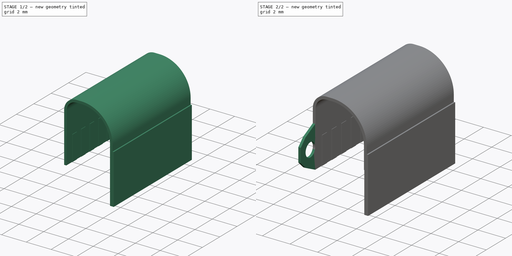
[diagram: build sequence overview — one tinted view per stage of 2, left to right]
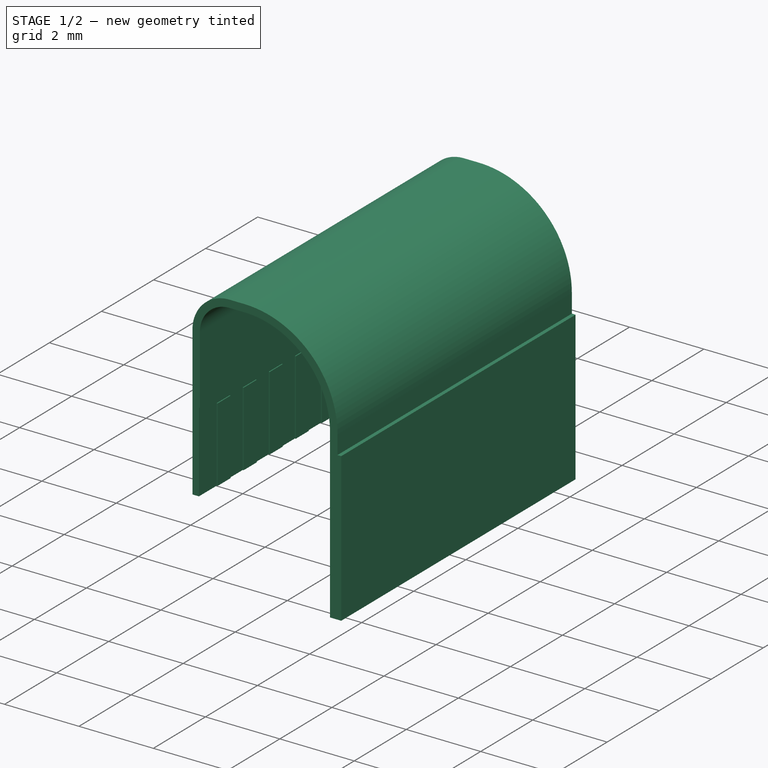
[diagram: stage 1 of 2 — iso view after this stage's code; geometry added in this stage tinted green]
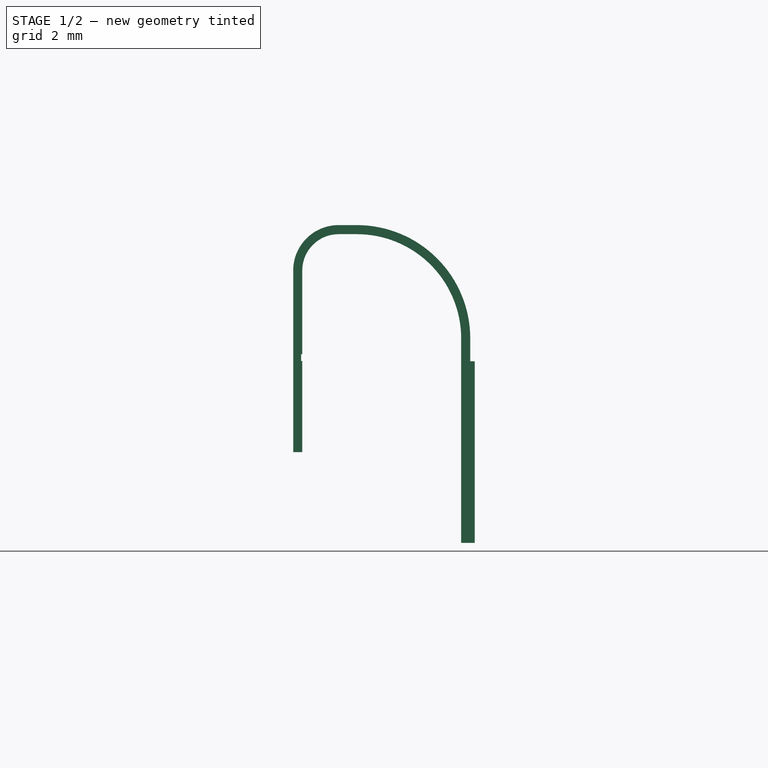
[diagram: stage 1 of 2 — front view after this stage's code; geometry added in this stage tinted green]
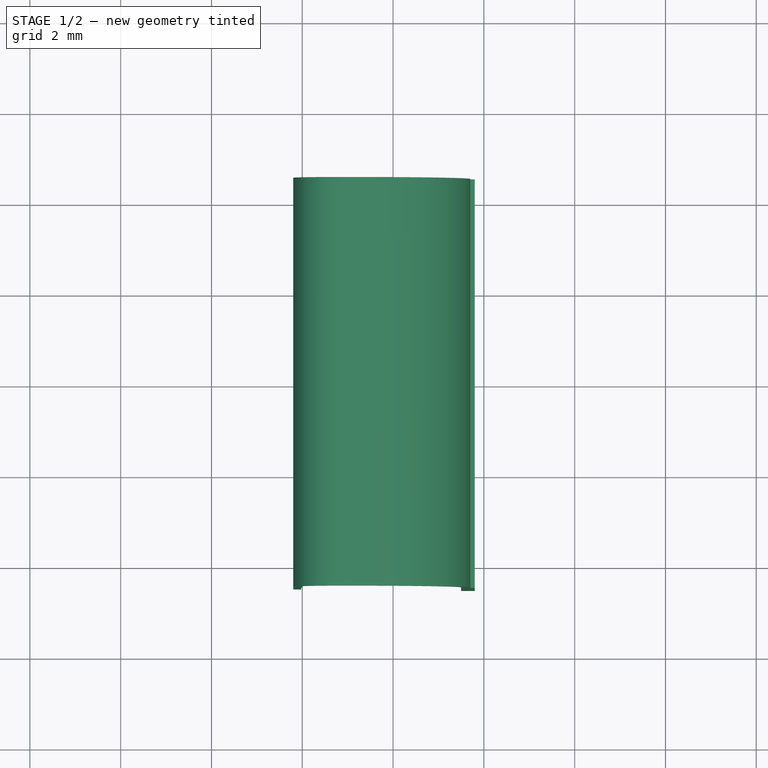
[diagram: stage 1 of 2 — top view after this stage's code; geometry added in this stage tinted green]
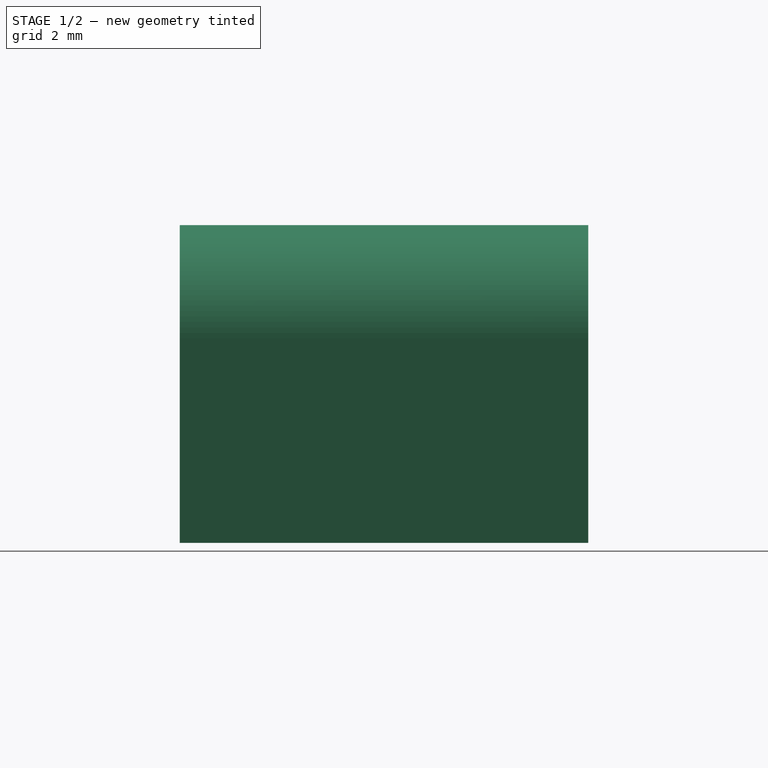
[diagram: stage 1 of 2 — right view after this stage's code; geometry added in this stage tinted green]
FCSTD DOCUMENT  (FreeCAD 0.18R15969 (Git))
Label: InterfaceFFC
License: All rights reserved
LicenseURL: http://en.wikipedia.org/wiki/All_rights_reserved
objects: Sketcher::SketchObject×4, PartDesign::Pad×2, PartDesign::Pocket×2, PartDesign::Body×1
note: 13 computed .brp shape members not serialized (recipe doc carries the construction recipe); baked Part::Feature solids carry a one-line shape summary decoded from their .brp

FEATURE [Sketcher::SketchObject] Sketch
  MapMode = 5
  Placement = pos=(0,0,0) rot=(1,0,0;1.5708rad)
  Support = -> [XZ_Plane]
  sketch-geometry (23):
    g0: LineSegment StartX=0 StartY=0 StartZ=0 EndX=0 EndY=4 EndZ=0
    g1: LineSegment StartX=0 StartY=0 StartZ=0 EndX=-0.2 EndY=0 EndZ=0
    g2: LineSegment StartX=-0.2 StartY=0 StartZ=0 EndX=-0.2 EndY=4 EndZ=0
    g3: LineSegment [constr] StartX=0 StartY=4 StartZ=0 EndX=0.8 EndY=4 EndZ=0
    g4: LineSegment [constr] StartX=0.8 StartY=4 StartZ=0 EndX=0.8 EndY=4.8 EndZ=0
    g5: LineSegment [constr] StartX=1.20187 StartY=2.50187 StartZ=0 EndX=1.20187 EndY=4.8 EndZ=0
    g6: LineSegment [constr] StartX=1.20187 StartY=2.50187 StartZ=0 EndX=3.5 EndY=2.50187 EndZ=0
    g7: ArcOfCircle CenterX=0.8 CenterY=4 CenterZ=0 NormalX=0 NormalY=0 NormalZ=1 AngleXU=0 Radius=0.8 StartAngle=1.5708 EndAngle=3.14159
    g8: ArcOfCircle CenterX=0.8 CenterY=4 CenterZ=0 NormalX=0 NormalY=0 NormalZ=1 AngleXU=0 Radius=1 StartAngle=1.5708 EndAngle=3.14159
    g9: LineSegment StartX=0.8 StartY=4.8 StartZ=0 EndX=1.20187 EndY=4.8 EndZ=0
    g10: ArcOfCircle CenterX=1.20187 CenterY=2.50187 CenterZ=0 NormalX=0 NormalY=0 NormalZ=1 AngleXU=0 Radius=2.29813 StartAngle=0 EndAngle=1.5708
    g11: LineSegment StartX=0.8 StartY=5 StartZ=0 EndX=1.20187 EndY=5 EndZ=0
    g12: LineSegment [constr] StartX=-0.2 StartY=4 StartZ=0 EndX=0 EndY=4 EndZ=0
    g13: LineSegment [constr] StartX=0.8 StartY=4.8 StartZ=0 EndX=0.8 EndY=5 EndZ=0
    g14: LineSegment [constr] StartX=1.20187 StartY=4.8 StartZ=0 EndX=1.20187 EndY=5 EndZ=0
    g15: LineSegment [constr] StartX=3.5 StartY=2.50187 StartZ=0 EndX=3.7 EndY=2.50187 EndZ=0
    g16: ArcOfCircle CenterX=1.20187 CenterY=2.50187 CenterZ=0 NormalX=0 NormalY=0 NormalZ=1 AngleXU=0 Radius=2.49813 StartAngle=0 EndAngle=1.5708
    g17: LineSegment StartX=3.5 StartY=2.50187 StartZ=0 EndX=3.5 EndY=-2 EndZ=0
    g18: LineSegment StartX=3.7 StartY=2.50187 StartZ=0 EndX=3.7 EndY=2 EndZ=0
    g19: LineSegment [constr] StartX=0 StartY=0 StartZ=0 EndX=1 EndY=0 EndZ=0
    g20: LineSegment StartX=3.7 StartY=2 StartZ=0 EndX=3.8 EndY=2 EndZ=0
    g21: LineSegment StartX=3.8 StartY=2 StartZ=0 EndX=3.8 EndY=-2 EndZ=0
    g22: LineSegment StartX=3.5 StartY=-2 StartZ=0 EndX=3.8 EndY=-2 EndZ=0
  constraints (61):
    c: Coincident(g0,g-1)
    c: Vertical(g0)
    c: Coincident(g1,g0)
    c: PointOnObject(g1,g-1)
    c: Coincident(g2,g1)
    c: Vertical(g2)
    c: DistanceX(g1,g1) = 0.2
    c: Coincident(g3,g0)
    c: Horizontal(g3)
    c: Coincident(g4,g3)
    c: Vertical(g4)
    c: Vertical(g5)
    c: Coincident(g6,g5)
    c: Horizontal(g6)
    c: Coincident(g7,g3)
    c: Coincident(g7,g0)
    c: Coincident(g7,g4)
    c: Coincident(g8,g7)
    c: Coincident(g8,g2)
    c: Coincident(g9,g7)
    c: Horizontal(g9)
    c: Coincident(g9,g5)
    c: Coincident(g10,g5)
    c: Coincident(g10,g9)
    c: Coincident(g10,g6)
    c: Coincident(g11,g8)
    c: Horizontal(g11)
    c: Coincident(g12,g2)
    c: Coincident(g12,g0)
    c: Coincident(g13,g7)
    c: Coincident(g13,g8)
    c: Coincident(g14,g9)
    c: Coincident(g14,g11)
    c: Coincident(g15,g10)
    c: Horizontal(g15)
    c: Vertical(g14)
    c: Vertical(g13)
    c: Horizontal(g12)
    c: DistanceY(g7,g8) = 1
    c: Coincident(g16,g10)
    c: Coincident(g16,g11)
    c: Coincident(g16,g15)
    c: Coincident(g17,g10)
    c: Vertical(g17)
    c: Coincident(g18,g16)
    c: Vertical(g18)
    c: DistanceY(g2,g2) = 4
    c: Coincident(g19,g0)
    c: PointOnObject(g19,g-1)
    c: DistanceX(g19,g19) = 1
    c: DistanceX(g19,g17) = 2.5
    c: DistanceY(g17,g11) = 7
    c: Coincident(g20,g18)
    c: Coincident(g21,g20)
    c: Vertical(g21)
    c: Coincident(g22,g17)
    c: Coincident(g22,g21)
    c: Horizontal(g22)
    c: DistanceX(g22,g22) = 0.3
    c: DistanceY(g21,g21) = 4
    c: Horizontal(g20)
FEATURE [PartDesign::Pad] Pad
  Length = 9
  Length2 = 100
  Midplane = true
  Placement = pos=(0,0,0) rot=(1,0,0;1.5708rad)
  Profile = -> Sketch
  Refine = true
  Type = 0
FEATURE [Sketcher::SketchObject] Sketch001
  ExternalGeometry = -> [Pad]
  MapMode = 5
  Placement = pos=(0,0,0) rot=(0.707107,0,0.707107;3.14159rad)
  Support = -> [Pad]
  sketch-geometry (36):
    g0: LineSegment StartX=0 StartY=3.8181 StartZ=0 EndX=2.00579 EndY=3.8181 EndZ=0
    g1: LineSegment StartX=2.00579 StartY=3.8181 StartZ=0 EndX=2.00579 EndY=3.3181 EndZ=0
    g2: LineSegment StartX=2.00579 StartY=3.3181 StartZ=0 EndX=0 EndY=3.3181 EndZ=0
    g3: LineSegment StartX=0 StartY=2.8181 StartZ=0 EndX=2.00579 EndY=2.8181 EndZ=0
    g4: LineSegment StartX=2.00579 StartY=2.8181 StartZ=0 EndX=2.00579 EndY=2.3181 EndZ=0
    g5: LineSegment StartX=2.00579 StartY=2.3181 StartZ=0 EndX=0 EndY=2.3181 EndZ=0
    g6: LineSegment StartX=0 StartY=1.8181 StartZ=0 EndX=2.00579 EndY=1.8181 EndZ=0
    g7: LineSegment StartX=2.00579 StartY=1.8181 StartZ=0 EndX=2.00579 EndY=1.3181 EndZ=0
    g8: LineSegment StartX=2.00579 StartY=1.3181 StartZ=0 EndX=0 EndY=1.3181 EndZ=0
    g9: LineSegment StartX=0 StartY=0.818103 StartZ=0 EndX=2.00579 EndY=0.818103 EndZ=0
    g10: LineSegment StartX=2.00579 StartY=0.818103 StartZ=0 EndX=2.00579 EndY=0.318103 EndZ=0
    g11: LineSegment StartX=2.00579 StartY=0.318103 StartZ=0 EndX=0 EndY=0.318103 EndZ=0
    g12: LineSegment StartX=0 StartY=-0.181897 StartZ=0 EndX=2.00579 EndY=-0.181897 EndZ=0
    g13: LineSegment StartX=2.00579 StartY=-0.181897 StartZ=0 EndX=2.00579 EndY=-0.681897 EndZ=0
    g14: LineSegment StartX=2.00579 StartY=-0.681897 StartZ=0 EndX=0 EndY=-0.681897 EndZ=0
    g15: LineSegment StartX=0 StartY=-1.1819 StartZ=0 EndX=2.00579 EndY=-1.1819 EndZ=0
    g16: LineSegment StartX=2.00579 StartY=-1.1819 StartZ=0 EndX=2.00579 EndY=-1.6819 EndZ=0
    g17: LineSegment StartX=2.00579 StartY=-1.6819 StartZ=0 EndX=0 EndY=-1.6819 EndZ=0
    g18: LineSegment StartX=0 StartY=-2.1819 StartZ=0 EndX=2.00579 EndY=-2.1819 EndZ=0
    g19: LineSegment StartX=2.00579 StartY=-2.1819 StartZ=0 EndX=2.00579 EndY=-2.6819 EndZ=0
    g20: LineSegment StartX=2.00579 StartY=-2.6819 StartZ=0 EndX=0 EndY=-2.6819 EndZ=0
    g21: LineSegment StartX=0 StartY=-3.1819 StartZ=0 EndX=2.00579 EndY=-3.1819 EndZ=0
    g22: LineSegment StartX=2.00579 StartY=-3.1819 StartZ=0 EndX=2.00579 EndY=-3.6819 EndZ=0
    g23: LineSegment StartX=2.00579 StartY=-3.6819 StartZ=0 EndX=0 EndY=-3.6819 EndZ=0
    g24: LineSegment StartX=0 StartY=3.3181 StartZ=0 EndX=0 EndY=2.8181 EndZ=0
    g25: LineSegment StartX=0 StartY=2.3181 StartZ=0 EndX=0 EndY=1.8181 EndZ=0
    g26: LineSegment StartX=0 StartY=1.3181 StartZ=0 EndX=0 EndY=0.818103 EndZ=0
    g27: LineSegment StartX=0 StartY=0.318103 StartZ=0 EndX=0 EndY=-0.181897 EndZ=0
    g28: LineSegment StartX=0 StartY=-0.681897 StartZ=0 EndX=0 EndY=-1.1819 EndZ=0
    g29: LineSegment StartX=0 StartY=-1.6819 StartZ=0 EndX=0 EndY=-2.1819 EndZ=0
    g30: LineSegment StartX=0 StartY=-2.6819 StartZ=0 EndX=0 EndY=-3.1819 EndZ=0
    g31: LineSegment StartX=0 StartY=3.8181 StartZ=0 EndX=2.7e-15 EndY=4.5 EndZ=0
    g32: LineSegment StartX=-2.7e-15 StartY=-4.5 StartZ=0 EndX=0 EndY=-3.6819 EndZ=0
    g33: LineSegment StartX=-2.7e-15 StartY=-4.5 StartZ=0 EndX=2.15616 EndY=-4.5 EndZ=0
    g34: LineSegment StartX=2.15616 StartY=-4.5 StartZ=0 EndX=2.15616 EndY=4.5 EndZ=0
    g35: LineSegment StartX=2.15616 StartY=4.5 StartZ=0 EndX=2.7e-15 EndY=4.5 EndZ=0
  constraints (103):
    c: PointOnObject(g0,g-2)
    c: Horizontal(g0)
    c: Coincident(g1,g0)
    c: Vertical(g1)
    c: Coincident(g2,g1)
    c: PointOnObject(g2,g-2)
    c: Horizontal(g2)
    c: PointOnObject(g3,g-2)
    c: Horizontal(g3)
    c: Coincident(g4,g3)
    c: Vertical(g4)
    c: Coincident(g5,g4)
    c: PointOnObject(g5,g-2)
    c: Horizontal(g5)
    c: PointOnObject(g6,g-2)
    c: Horizontal(g6)
    c: Coincident(g7,g6)
    c: Vertical(g7)
    c: Coincident(g8,g7)
    c: PointOnObject(g8,g-2)
    c: Horizontal(g8)
    c: PointOnObject(g9,g-2)
    c: Horizontal(g9)
    c: Coincident(g10,g9)
    c: Vertical(g10)
    c: Coincident(g11,g10)
    c: PointOnObject(g11,g-2)
    c: Horizontal(g11)
    c: PointOnObject(g12,g-2)
    c: Horizontal(g12)
    c: Coincident(g13,g12)
    c: Vertical(g13)
    c: Coincident(g14,g13)
    c: PointOnObject(g14,g-2)
    c: Horizontal(g14)
    c: PointOnObject(g15,g-2)
    c: Horizontal(g15)
    c: Coincident(g16,g15)
    c: Vertical(g16)
    c: Coincident(g17,g16)
    c: PointOnObject(g17,g-2)
    c: Horizontal(g17)
    c: PointOnObject(g18,g-2)
    c: Horizontal(g18)
    c: Coincident(g19,g18)
    c: Vertical(g19)
    c: Coincident(g20,g19)
    c: PointOnObject(g20,g-2)
    c: Horizontal(g20)
    c: PointOnObject(g21,g-2)
    c: Horizontal(g21)
    c: Coincident(g22,g21)
    c: Vertical(g22)
    c: Coincident(g23,g22)
    c: Horizontal(g23)
    c: PointOnObject(g23,g-2)
    c: Equal(g23,g20)
    c: Equal(g20,g17)
    c: Equal(g17,g14)
    c: Equal(g14,g11)
    c: Equal(g11,g8)
    c: Equal(g8,g5)
    c: Equal(g5,g2)
    c: Equal(g22,g19)
    c: Equal(g19,g16)
    c: Equal(g16,g13)
    c: Equal(g13,g10)
    c: Equal(g10,g7)
    c: Equal(g7,g4)
    c: Equal(g4,g1)
    c: Coincident(g24,g2)
    c: Coincident(g24,g3)
    c: Coincident(g25,g5)
    c: Coincident(g25,g6)
    c: Coincident(g26,g8)
    c: Coincident(g26,g9)
    c: Coincident(g27,g11)
    c: Coincident(g27,g12)
    c: Coincident(g28,g14)
    c: Coincident(g28,g15)
    c: Coincident(g29,g17)
    c: Coincident(g29,g18)
    c: Coincident(g30,g20)
    c: Coincident(g30,g21)
    c: Equal(g24,g25)
    c: Equal(g25,g26)
    c: Equal(g26,g27)
    c: Equal(g27,g28)
    c: Equal(g28,g29)
    c: Equal(g29,g30)
    c: DistanceY(g1,g1) = 0.5
    c: DistanceY(g24,g24) = 0.5
    c: Coincident(g31,g0)
    c: Coincident(g31,g-3)
    c: Coincident(g32,g-4)
    c: Coincident(g32,g23)
    c: Coincident(g33,g32)
    c: PointOnObject(g33,g-4)
    c: Coincident(g34,g33)
    c: PointOnObject(g34,g-3)
    c: Vertical(g34)
    c: Coincident(g35,g34)
    c: Coincident(g35,g31)
FEATURE [PartDesign::Pocket] Pocket
  BaseFeature = -> Pad
  Length = 0.025
  Length2 = 100
  Placement = pos=(0,0,0) rot=(1,0,0;1.5708rad)
  Profile = -> Sketch001
  Refine = true
  Type = 0
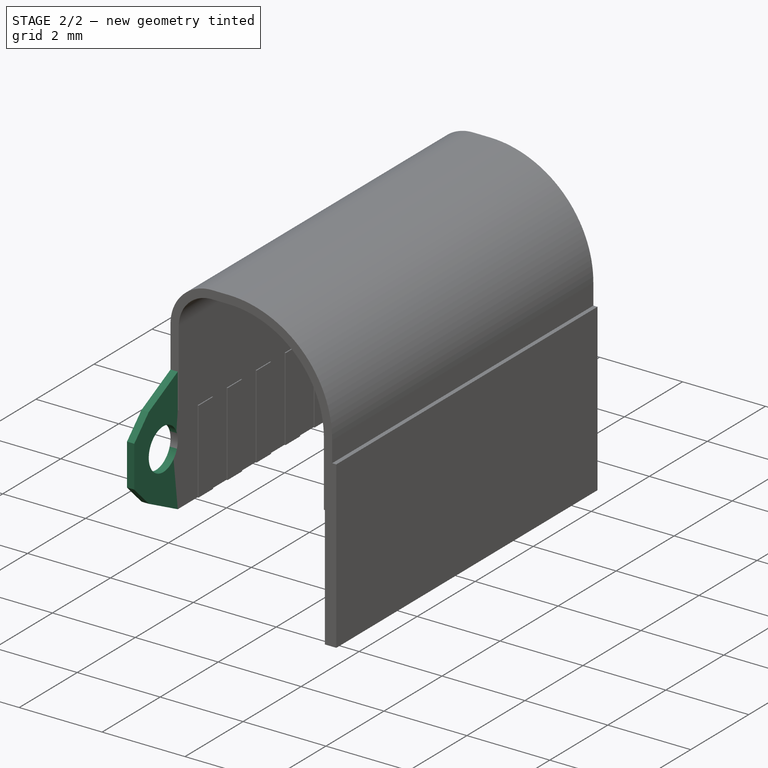
[diagram: stage 2 of 2 — iso view after this stage's code; geometry added in this stage tinted green]
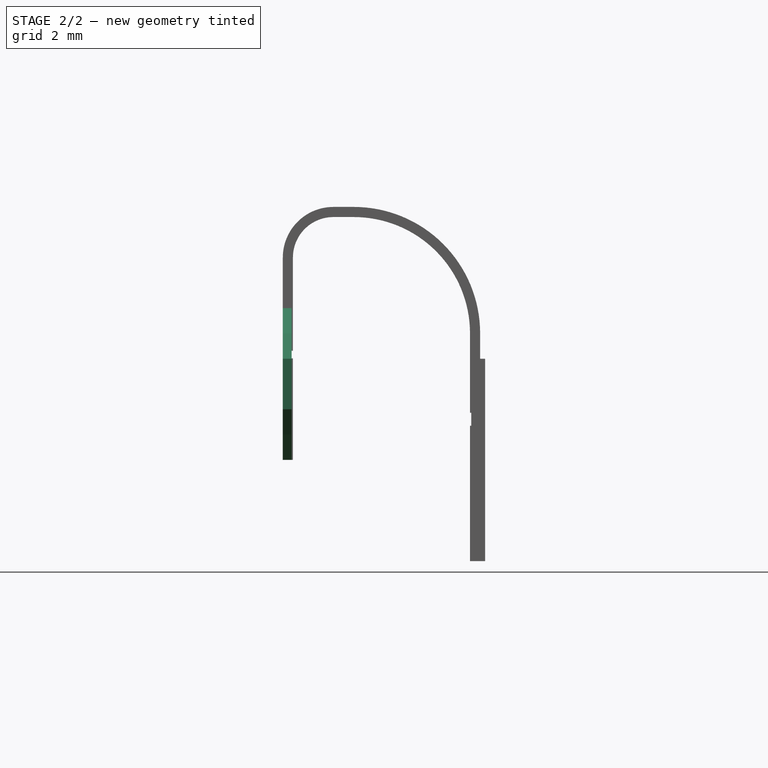
[diagram: stage 2 of 2 — front view after this stage's code; geometry added in this stage tinted green]
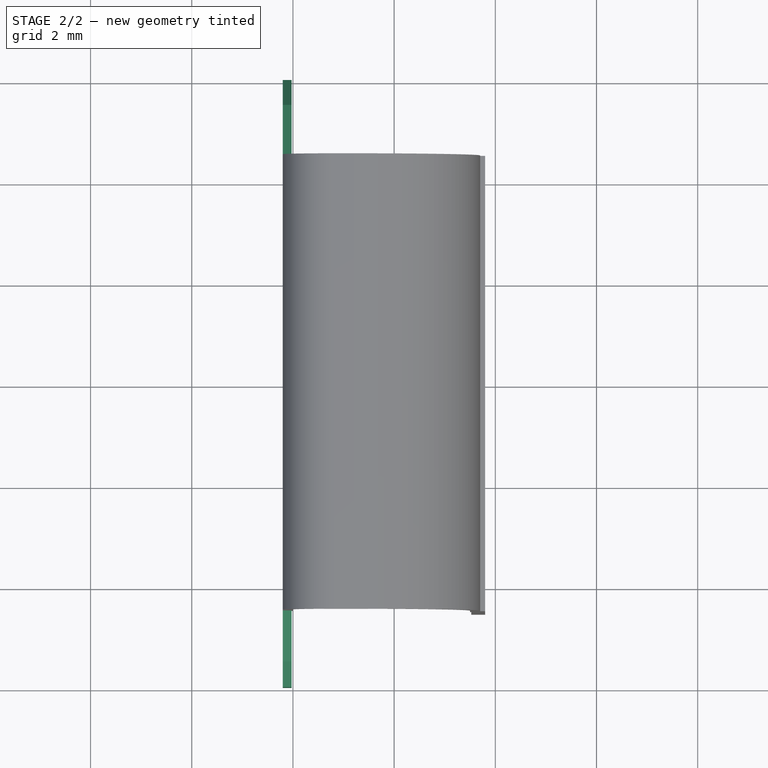
[diagram: stage 2 of 2 — top view after this stage's code; geometry added in this stage tinted green]
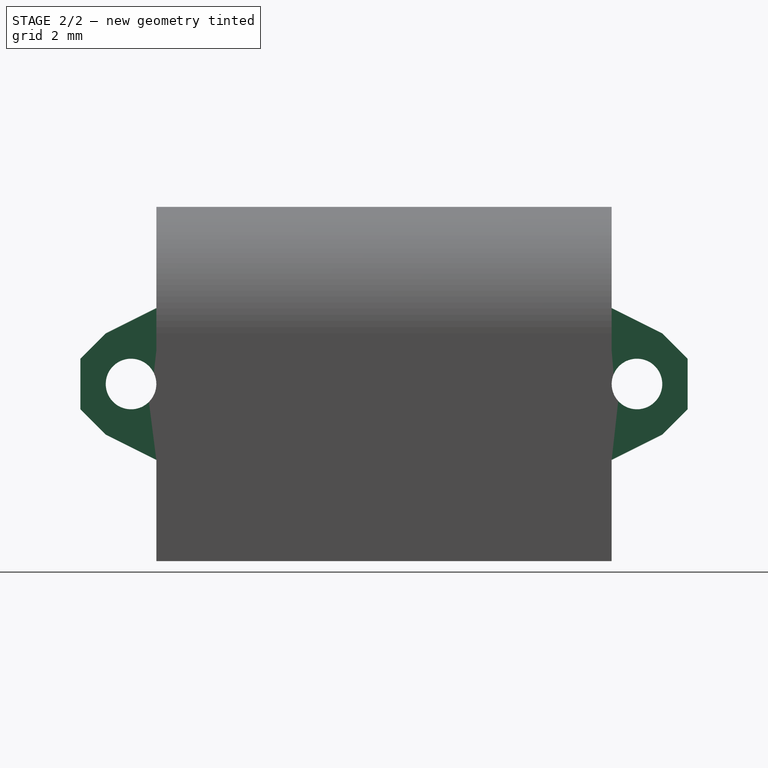
[diagram: stage 2 of 2 — right view after this stage's code; geometry added in this stage tinted green]
FEATURE [Sketcher::SketchObject] Sketch002
  ExternalGeometry = -> [Pocket]
  MapMode = 5
  Placement = pos=(3.5,0,0) rot=(0.707107,0,-0.707107;3.14159rad)
  Support = -> [Pocket]
  sketch-geometry (36):
    g0: LineSegment StartX=2 StartY=3.75 StartZ=0 EndX=-0.673578 EndY=3.75 EndZ=0
    g1: LineSegment StartX=-0.673578 StartY=3.75 StartZ=0 EndX=-0.673578 EndY=3.25 EndZ=0
    g2: LineSegment StartX=-0.673578 StartY=3.25 StartZ=0 EndX=2 EndY=3.25 EndZ=0
    g3: LineSegment StartX=2 StartY=3.25 StartZ=0 EndX=1.99849 EndY=2.75 EndZ=0
    g4: LineSegment StartX=1.99849 StartY=2.75 StartZ=0 EndX=-0.675084 EndY=2.75 EndZ=0
    g5: LineSegment StartX=-0.675084 StartY=2.75 StartZ=0 EndX=-0.675084 EndY=2.25 EndZ=0
    g6: LineSegment StartX=-0.675084 StartY=2.25 StartZ=0 EndX=2 EndY=2.25 EndZ=0
    g7: LineSegment StartX=2 StartY=2.25 StartZ=0 EndX=2 EndY=1.75 EndZ=0
    g8: LineSegment StartX=2 StartY=1.75 StartZ=0 EndX=-0.673578 EndY=1.75 EndZ=0
    g9: LineSegment StartX=-0.673578 StartY=1.75 StartZ=0 EndX=-0.673578 EndY=1.25 EndZ=0
    g10: LineSegment StartX=-0.673578 StartY=1.25 StartZ=0 EndX=2 EndY=1.25 EndZ=0
    g11: LineSegment StartX=2 StartY=1.25 StartZ=0 EndX=2 EndY=0.750001 EndZ=0
    g12: LineSegment StartX=2 StartY=0.750001 StartZ=0 EndX=-0.673578 EndY=0.750001 EndZ=0
    g13: LineSegment StartX=-0.673578 StartY=0.750001 StartZ=0 EndX=-0.673578 EndY=0.250001 EndZ=0
    g14: LineSegment StartX=-0.673578 StartY=0.250001 StartZ=0 EndX=2 EndY=0.250001 EndZ=0
    g15: LineSegment StartX=2 StartY=0.250001 StartZ=0 EndX=2 EndY=-0.249999 EndZ=0
    g16: LineSegment StartX=2 StartY=-0.249999 StartZ=0 EndX=-0.673578 EndY=-0.249999 EndZ=0
    g17: LineSegment StartX=-0.673578 StartY=-0.249999 StartZ=0 EndX=-0.673578 EndY=-0.749999 EndZ=0
    g18: LineSegment StartX=-0.673578 StartY=-0.749999 StartZ=0 EndX=2 EndY=-0.749999 EndZ=0
    g19: LineSegment StartX=2 StartY=-0.749999 StartZ=0 EndX=2 EndY=-1.25 EndZ=0
    g20: LineSegment StartX=2 StartY=-1.25 StartZ=0 EndX=-0.673578 EndY=-1.25 EndZ=0
    g21: LineSegment StartX=-0.673578 StartY=-1.25 StartZ=0 EndX=-0.673578 EndY=-1.75 EndZ=0
    g22: LineSegment StartX=-0.673578 StartY=-1.75 StartZ=0 EndX=2 EndY=-1.75 EndZ=0
    g23: LineSegment StartX=2 StartY=-1.75 StartZ=0 EndX=2 EndY=-2.25 EndZ=0
    g24: LineSegment StartX=2 StartY=-2.25 StartZ=0 EndX=-0.673578 EndY=-2.25 EndZ=0
    g25: LineSegment StartX=-0.673578 StartY=-2.25 StartZ=0 EndX=-0.673578 EndY=-2.75 EndZ=0
    g26: LineSegment StartX=-0.673578 StartY=-2.75 StartZ=0 EndX=2 EndY=-2.75 EndZ=0
    g27: LineSegment StartX=2 StartY=-2.75 StartZ=0 EndX=2 EndY=-3.25 EndZ=0
    g28: LineSegment StartX=2 StartY=-3.25 StartZ=0 EndX=-0.673578 EndY=-3.25 EndZ=0
    g29: LineSegment StartX=-0.673578 StartY=-3.25 StartZ=0 EndX=-0.673578 EndY=-3.75 EndZ=0
    g30: LineSegment StartX=-0.673578 StartY=-3.75 StartZ=0 EndX=2 EndY=-3.75 EndZ=0
    g31: LineSegment StartX=2 StartY=4.5 StartZ=0 EndX=2 EndY=3.75 EndZ=0
    g32: LineSegment StartX=2 StartY=-3.75 StartZ=0 EndX=2 EndY=-4.5 EndZ=0
    g33: LineSegment StartX=2 StartY=4.5 StartZ=0 EndX=-0.931806 EndY=4.5 EndZ=0
    g34: LineSegment StartX=-0.931806 StartY=4.5 StartZ=0 EndX=-0.931806 EndY=-4.5 EndZ=0
    g35: LineSegment StartX=-0.931806 StartY=-4.5 StartZ=0 EndX=2 EndY=-4.5 EndZ=0
  constraints (103):
    c: PointOnObject(g0,g-4)
    c: Horizontal(g0)
    c: Coincident(g1,g0)
    c: Vertical(g1)
    c: Coincident(g2,g1)
    c: PointOnObject(g2,g-4)
    c: Horizontal(g2)
    c: Coincident(g3,g2)
    c: Coincident(g4,g3)
    c: Horizontal(g4)
    c: Coincident(g5,g4)
    c: Vertical(g5)
    c: Coincident(g6,g5)
    c: PointOnObject(g6,g-4)
    c: Horizontal(g6)
    c: Coincident(g6,g7)
    c: PointOnObject(g7,g-4)
    c: Coincident(g7,g8)
    c: Horizontal(g8)
    c: Coincident(g8,g9)
    c: Vertical(g9)
    c: Coincident(g9,g10)
    c: PointOnObject(g10,g-4)
    c: Coincident(g10,g11)
    c: PointOnObject(g11,g-4)
    c: Coincident(g11,g12)
    c: Horizontal(g12)
    c: Coincident(g12,g13)
    c: Vertical(g13)
    c: Coincident(g13,g14)
    c: PointOnObject(g14,g-4)
    c: Horizontal(g14)
    c: Coincident(g14,g15)
    c: PointOnObject(g15,g-4)
    c: Coincident(g15,g16)
    c: Horizontal(g16)
    c: Coincident(g16,g17)
    c: Vertical(g17)
    c: Coincident(g17,g18)
    c: PointOnObject(g18,g-4)
    c: Horizontal(g18)
    c: Coincident(g18,g19)
    c: PointOnObject(g19,g-4)
    c: Coincident(g19,g20)
    c: Horizontal(g20)
    c: Coincident(g20,g21)
    c: Vertical(g21)
    c: Coincident(g21,g22)
    c: PointOnObject(g22,g-4)
    c: Horizontal(g22)
    c: Coincident(g22,g23)
    c: PointOnObject(g23,g-4)
    c: Coincident(g23,g24)
    c: Horizontal(g24)
    c: Coincident(g24,g25)
    c: Vertical(g25)
    c: Coincident(g25,g26)
    c: Horizontal(g26)
    c: Coincident(g26,g27)
    c: PointOnObject(g27,g-4)
    c: Coincident(g27,g28)
    c: Horizontal(g28)
    c: Coincident(g28,g29)
    c: Coincident(g29,g30)
    c: PointOnObject(g30,g-4)
    c: Horizontal(g30)
    c: Horizontal(g10)
    c: Vertical(g29)
    c: PointOnObject(g26,g-4)
    c: Equal(g1,g5)
    c: Equal(g5,g9)
    c: Equal(g9,g13)
    c: Equal(g13,g17)
    c: Equal(g17,g21)
    c: Equal(g21,g25)
    c: Equal(g25,g29)
    c: Equal(g28,g24)
    c: Equal(g24,g20)
    c: Equal(g20,g16)
    c: Equal(g16,g12)
    c: Equal(g12,g8)
    c: Equal(g8,g4)
    c: Equal(g4,g0)
    c: Coincident(g31,g-4)
    c: Coincident(g31,g0)
    c: Coincident(g32,g30)
    c: Coincident(g32,g-5)
    c: Equal(g32,g31)
    c: Equal(g3,g7)
    c: Equal(g7,g11)
    c: Equal(g11,g15)
    c: Equal(g15,g19)
    c: Equal(g19,g23)
    c: Equal(g23,g27)
    c: DistanceY(g29,g29) = 0.5
    c: DistanceY(g27,g27) = 0.5
    c: Coincident(g33,g31)
    c: PointOnObject(g33,g-3)
    c: Coincident(g34,g33)
    c: PointOnObject(g34,g-5)
    c: Vertical(g34)
    c: Coincident(g35,g34)
    c: Coincident(g35,g32)
FEATURE [PartDesign::Pocket] Pocket001
  BaseFeature = -> Pocket
  Length = 0.025
  Length2 = 100
  Placement = pos=(0,0,0) rot=(1,0,0;1.5708rad)
  Profile = -> Sketch002
  Refine = true
  Type = 0
FEATURE [Sketcher::SketchObject] Sketch003
  ExternalGeometry = -> [Pocket001]
  MapMode = 5
  Placement = pos=(-0.2,0,0) rot=(0.707107,0,-0.707107;3.14159rad)
  Support = -> [Pocket001]
  sketch-geometry (14):
    g0: LineSegment StartX=0 StartY=-4.5 StartZ=0 EndX=-0.5 EndY=-5.5 EndZ=0
    g1: LineSegment StartX=-0.5 StartY=-5.5 StartZ=0 EndX=-1 EndY=-6 EndZ=0
    g2: LineSegment StartX=-1 StartY=-6 StartZ=0 EndX=-2 EndY=-6 EndZ=0
    g3: LineSegment StartX=-2 StartY=-6 StartZ=0 EndX=-2.5 EndY=-5.5 EndZ=0
    g4: LineSegment StartX=-2.5 StartY=-5.5 StartZ=0 EndX=-3 EndY=-4.5 EndZ=0
    g5: LineSegment StartX=-3 StartY=-4.5 StartZ=0 EndX=0 EndY=-4.5 EndZ=0
    g6: LineSegment StartX=0 StartY=4.5 StartZ=0 EndX=-3 EndY=4.5 EndZ=0
    g7: LineSegment StartX=-3 StartY=4.5 StartZ=0 EndX=-2.5 EndY=5.5 EndZ=0
    g8: LineSegment StartX=-2.5 StartY=5.5 StartZ=0 EndX=-2 EndY=6 EndZ=0
    g9: LineSegment StartX=-2 StartY=6 StartZ=0 EndX=-1 EndY=6 EndZ=0
    g10: LineSegment StartX=-1 StartY=6 StartZ=0 EndX=-0.5 EndY=5.5 EndZ=0
    g11: LineSegment StartX=-0.5 StartY=5.5 StartZ=0 EndX=0 EndY=4.5 EndZ=0
    g12: Circle CenterX=-1.5 CenterY=5 CenterZ=0 NormalX=0 NormalY=0 NormalZ=1 AngleXU=0 Radius=0.5
    g13: Circle CenterX=-1.5 CenterY=-5 CenterZ=0 NormalX=0 NormalY=0 NormalZ=1 AngleXU=0 Radius=0.5
  constraints (16):
    c: Coincident(g1,g0)
    c: Horizontal(g2)
    c: Coincident(g3,g2)
    c: Coincident(g4,g3)
    c: Coincident(g5,g4)
    c: Coincident(g5,g0)
    c: Horizontal(g5)
    c: Coincident(g6,g-3)
    c: PointOnObject(g6,g-3)
    c: Coincident(g7,g6)
    c: Coincident(g8,g7)
    c: Coincident(g9,g8)
    c: Horizontal(g9)
    c: Coincident(g10,g9)
    c: Coincident(g11,g10)
    c: Coincident(g11,g6)
FEATURE [PartDesign::Pad] Pad001
  BaseFeature = -> Pocket001
  Length = 0.175
  Length2 = 100
  Placement = pos=(0,0,0) rot=(1,0,0;1.5708rad)
  Profile = -> Sketch003
  Refine = true
  Reversed = true
  Type = 0
FEATURE [PartDesign::Body] Body
  Group = -> [Sketch,Pad,Sketch001,Pocket,Sketch002,Pocket001,Sketch003,Pad001]
  Origin = -> Origin
  Tip = -> Pad001
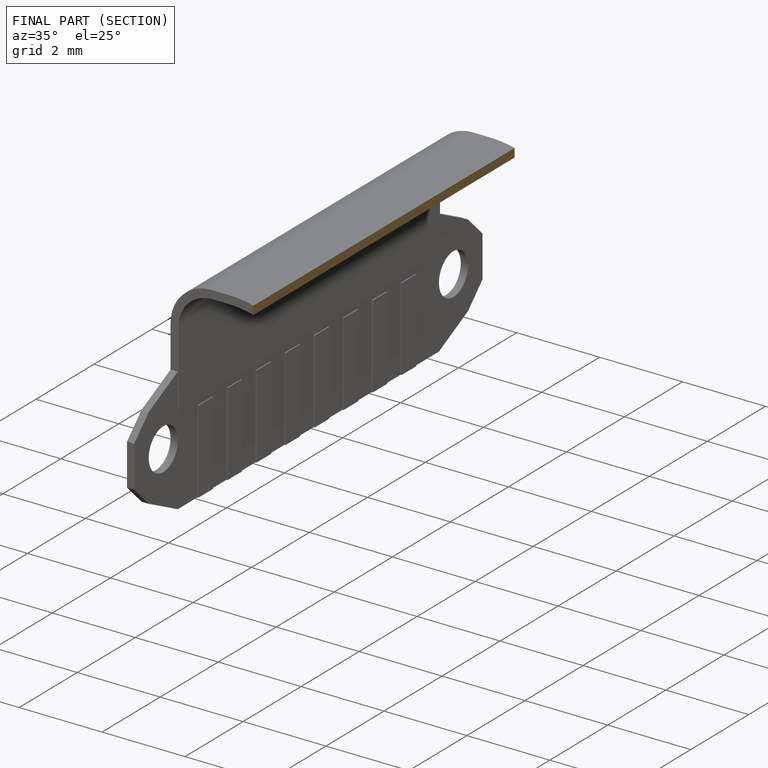
[diagram: finished part — half-section view (interior)]
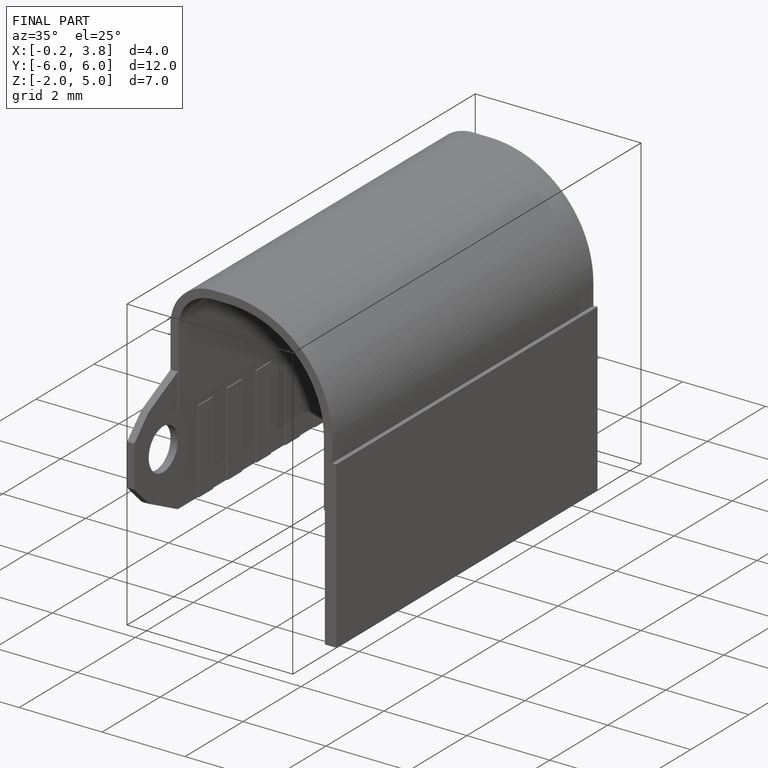
[diagram: finished part — iso view with bounding-box wireframe]
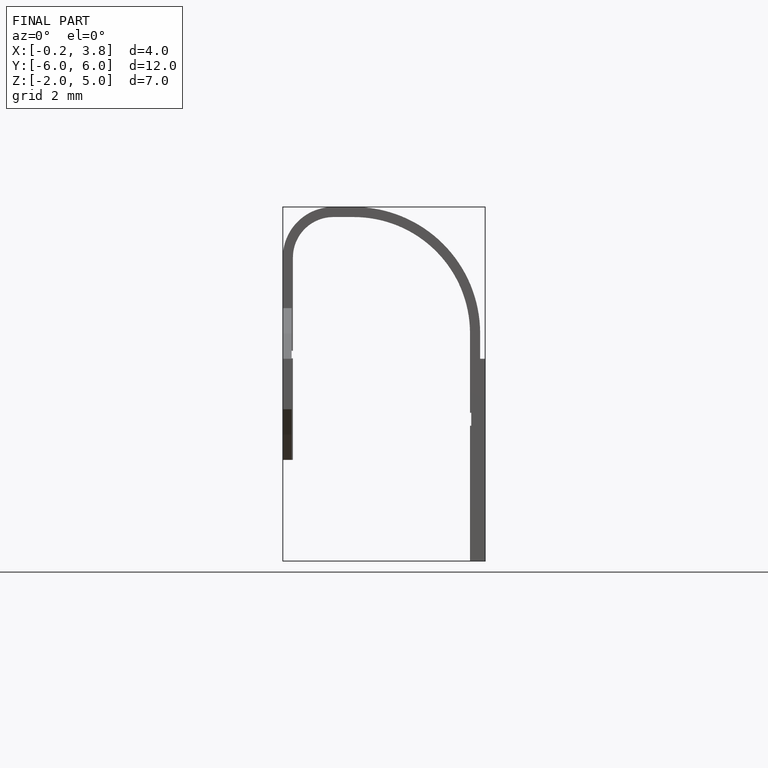
[diagram: finished part — front view with bounding-box wireframe]
